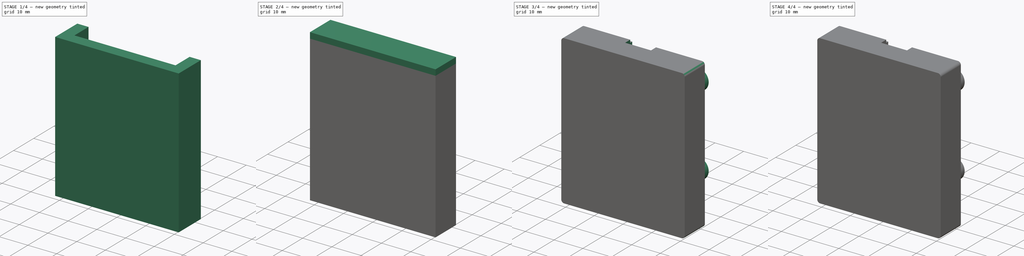
[diagram: build sequence overview — one tinted view per stage of 4, left to right]
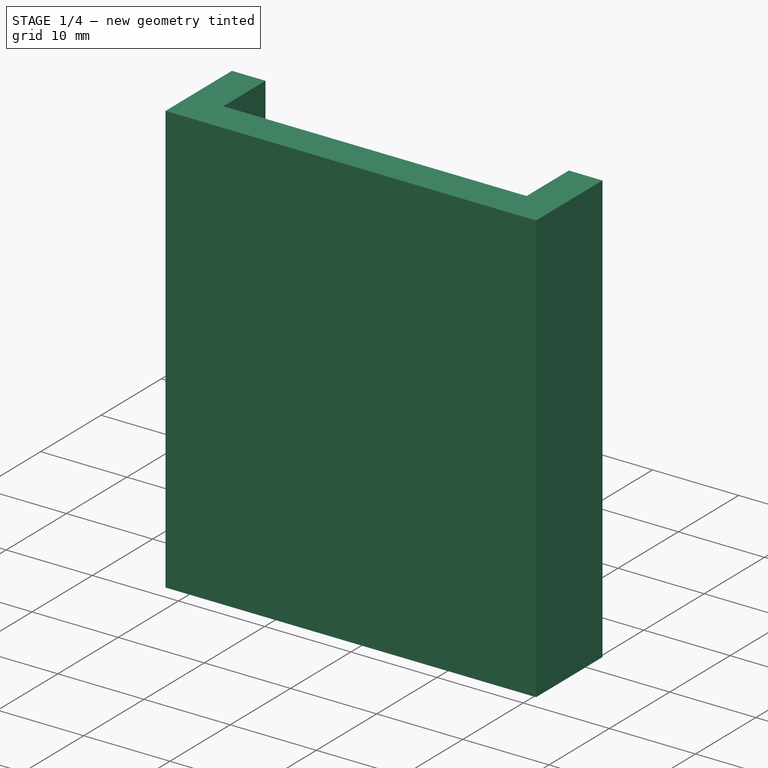
[diagram: stage 1 of 4 — iso view after this stage's code; geometry added in this stage tinted green]
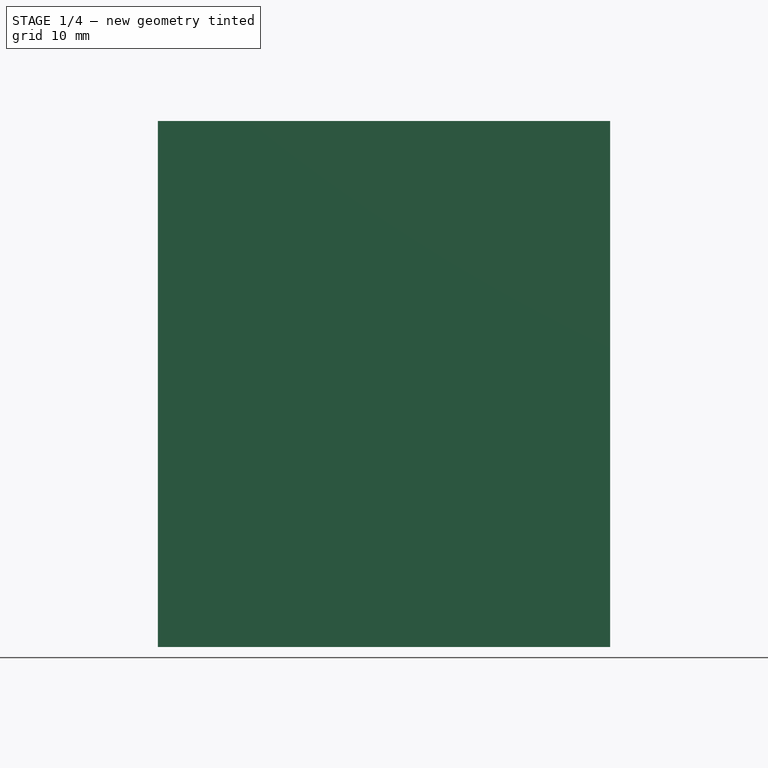
[diagram: stage 1 of 4 — front view after this stage's code; geometry added in this stage tinted green]
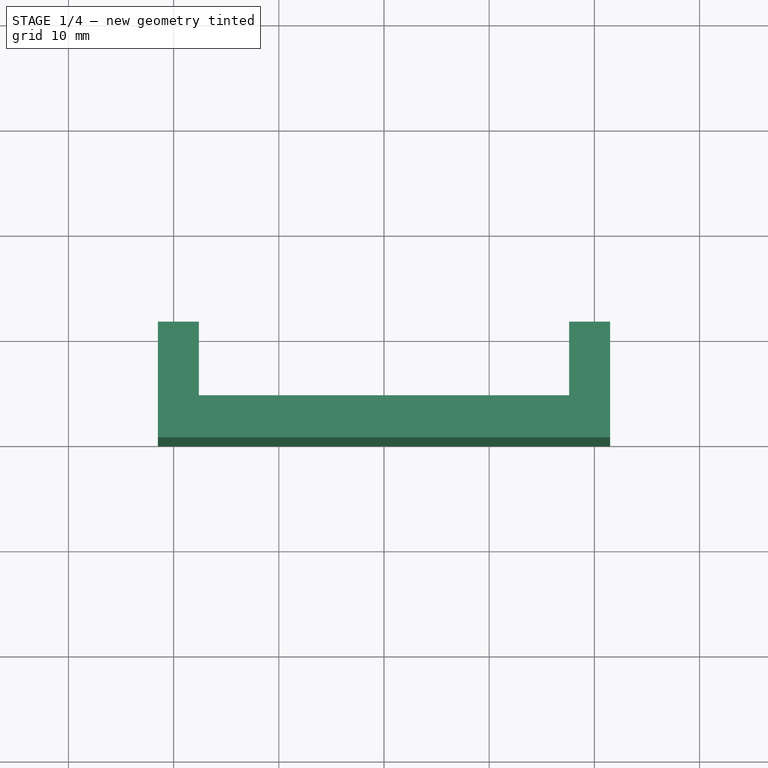
[diagram: stage 1 of 4 — top view after this stage's code; geometry added in this stage tinted green]
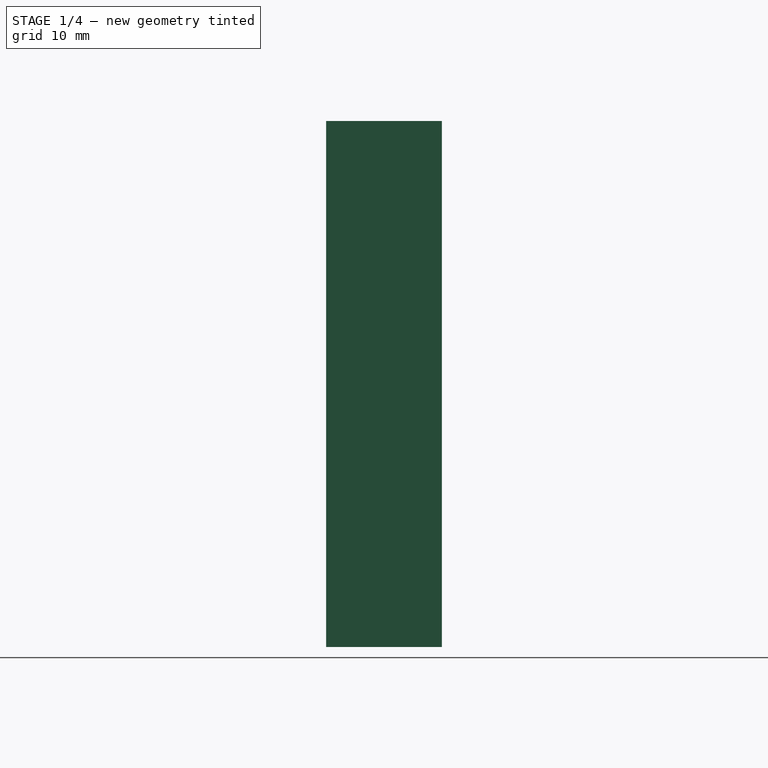
[diagram: stage 1 of 4 — right view after this stage's code; geometry added in this stage tinted green]
FCSTD DOCUMENT  (FreeCAD 0.20R29410 (Git))
Label: kutija1
License: All rights reserved
LicenseURL: http://en.wikipedia.org/wiki/All_rights_reserved
objects: Sketcher::SketchObject×8, PartDesign::Pad×4, PartDesign::Pocket×4, PartDesign::Fillet×1, PartDesign::Body×1
note: 27 computed .brp shape members not serialized (recipe doc carries the construction recipe); baked Part::Feature solids carry a one-line shape summary decoded from their .brp

FEATURE [Sketcher::SketchObject] Sketch
  FullyConstrained = true
  MapMode = 5
  Support = -> [XY_Plane]
  sketch-geometry (8):
    g0: LineSegment StartX=-21.5 StartY=11 StartZ=0 EndX=-21.5 EndY=0 EndZ=0
    g1: LineSegment StartX=-21.5 StartY=0 StartZ=0 EndX=21.5 EndY=0 EndZ=0
    g2: LineSegment StartX=21.5 StartY=0 StartZ=0 EndX=21.5 EndY=11 EndZ=0
    g3: LineSegment StartX=21.5 StartY=11 StartZ=0 EndX=17.6 EndY=11 EndZ=0
    g4: LineSegment StartX=17.6 StartY=11 StartZ=0 EndX=17.6 EndY=4 EndZ=0
    g5: LineSegment StartX=17.6 StartY=4 StartZ=0 EndX=-17.6 EndY=4 EndZ=0
    g6: LineSegment StartX=-17.6 StartY=4 StartZ=0 EndX=-17.6 EndY=11 EndZ=0
    g7: LineSegment StartX=-17.6 StartY=11 StartZ=0 EndX=-21.5 EndY=11 EndZ=0
  constraints (22):
    c: Vertical(g4)
    c: DistanceX(g1,g1) = 43
    c: DistanceX(g5,g5) = 35.2
    c: Equal(g0,g2)
    c: Vertical(g6)
    c: Symmetric(g0,g1,g-2)
    c: Coincident(g5,g6)
    c: Coincident(g4,g5)
    c: Horizontal(g7)
    c: Coincident(g0,g7)
    c: Vertical(g0)
    c: Coincident(g3,g2)
    c: Vertical(g2)
    c: Coincident(g0,g1)
    c: Coincident(g1,g2)
    c: PointOnObject(g-1,g1)
    c: Coincident(g6,g7)
    c: Coincident(g3,g4)
    c: Horizontal(g3)
    c: Symmetric(g5,g4,g-2)
    c: DistanceY(g0,g5) = 4
    c: DistanceY(g6,g6) = 7
FEATURE [PartDesign::Pad] Pad
  Direction = (0,0,1)
  Length = 50
  Length2 = 10
  Profile = -> Sketch
  ReferenceAxis = -> Sketch [N_Axis]
  Type = 0
FEATURE [Sketcher::SketchObject] Sketch001
  FullyConstrained = true
  MapMode = 5
  Placement = pos=(0,11,0) rot=(0,0.707107,0.707107;3.14159rad)
  Support = -> [Pad]
  sketch-geometry (4):
    g0: LineSegment StartX=-19.65 StartY=6.4 StartZ=0 EndX=19.65 EndY=6.4 EndZ=0
    g1: LineSegment StartX=19.65 StartY=6.4 StartZ=0 EndX=19.65 EndY=3 EndZ=0
    g2: LineSegment StartX=19.65 StartY=3 StartZ=0 EndX=-19.65 EndY=3 EndZ=0
    g3: LineSegment StartX=-19.65 StartY=3 StartZ=0 EndX=-19.65 EndY=6.4 EndZ=0
  constraints (11):
    c: Coincident(g0,g1)
    c: Coincident(g1,g2)
    c: Coincident(g2,g3)
    c: Coincident(g3,g0)
    c: Horizontal(g0)
    c: Vertical(g1)
    c: Vertical(g3)
    c: DistanceY(g1,g1) = 3.4
    c: Symmetric(g2,g1,g-2)
    c: DistanceX(g2,g2) = 39.3
    c: DistanceY(g-1,g1) = 3
FEATURE [PartDesign::Pocket] Pocket
  BaseFeature = -> Pad
  Direction = (0,-1,2e-16)
  Length = 9.4
  Length2 = 5
  Profile = -> Sketch001
  ReferenceAxis = -> Sketch001 [N_Axis]
  Type = 0
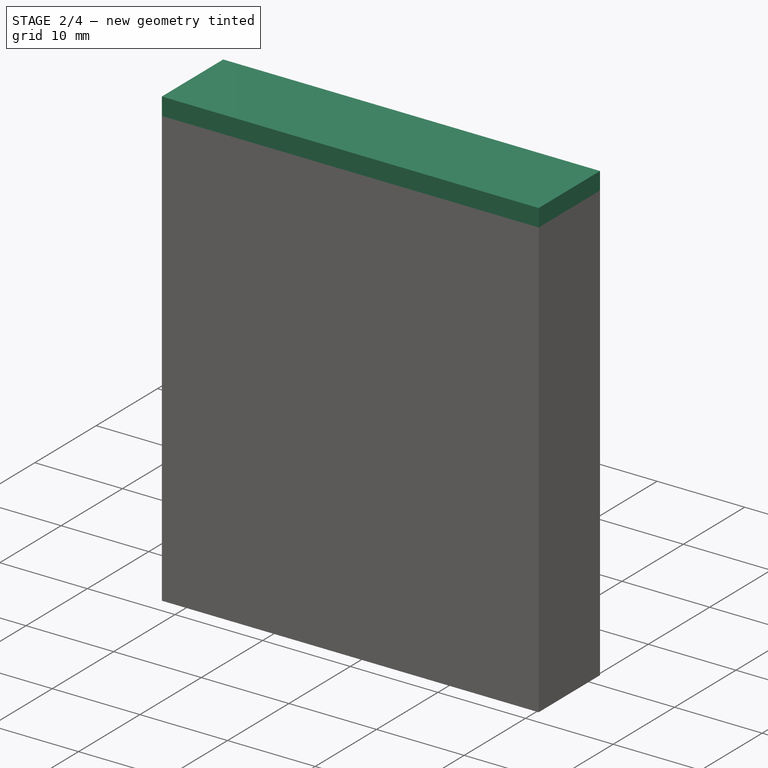
[diagram: stage 2 of 4 — iso view after this stage's code; geometry added in this stage tinted green]
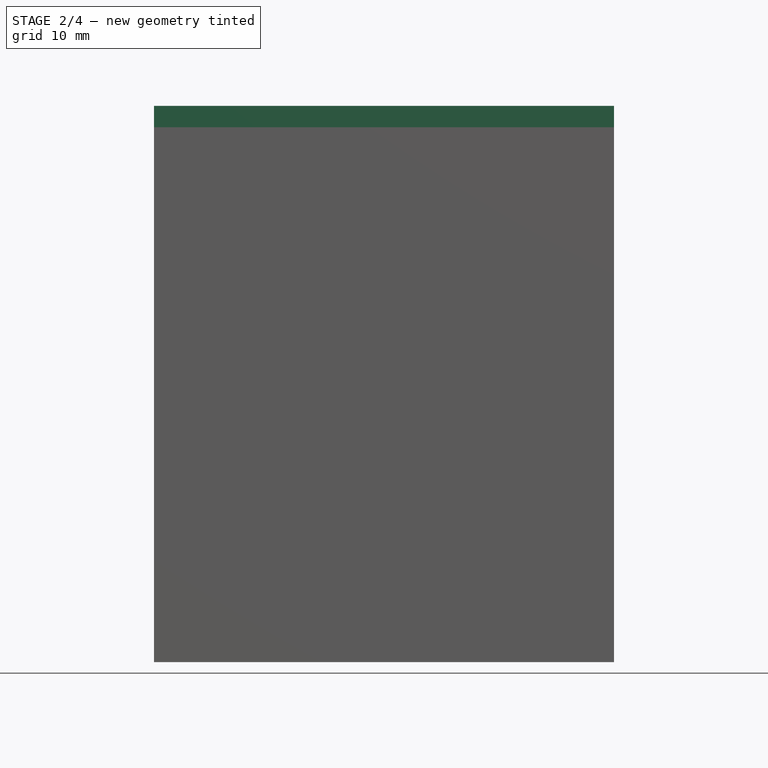
[diagram: stage 2 of 4 — front view after this stage's code; geometry added in this stage tinted green]
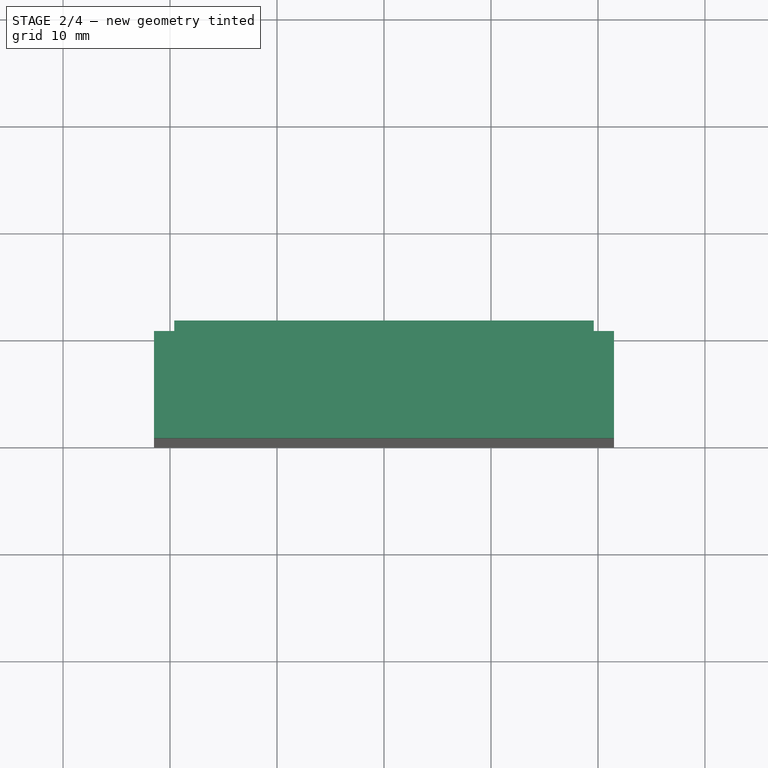
[diagram: stage 2 of 4 — top view after this stage's code; geometry added in this stage tinted green]
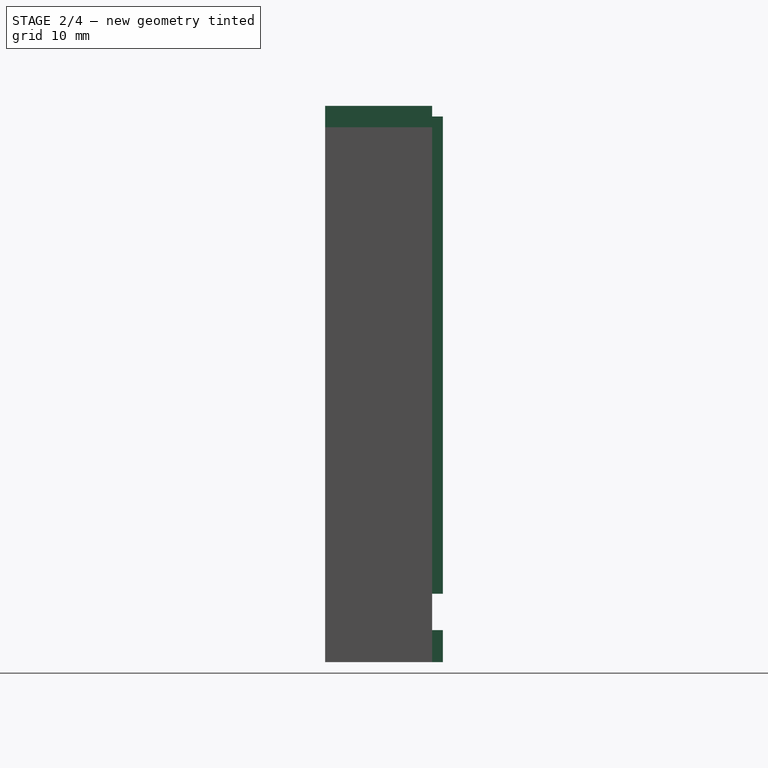
[diagram: stage 2 of 4 — right view after this stage's code; geometry added in this stage tinted green]
FEATURE [Sketcher::SketchObject] Sketch002
  FullyConstrained = true
  MapMode = 5
  Placement = pos=(0,0,50) rot=(0,0,1;0rad)
  Support = -> [Pocket]
  sketch-geometry (4):
    g0: LineSegment StartX=-21.5 StartY=11 StartZ=0 EndX=21.5 EndY=11 EndZ=0
    g1: LineSegment StartX=21.5 StartY=11 StartZ=0 EndX=21.5 EndY=0 EndZ=0
    g2: LineSegment StartX=21.5 StartY=0 StartZ=0 EndX=-21.5 EndY=0 EndZ=0
    g3: LineSegment StartX=-21.5 StartY=0 StartZ=0 EndX=-21.5 EndY=11 EndZ=0
  constraints (11):
    c: Coincident(g0,g1)
    c: Coincident(g1,g2)
    c: Coincident(g2,g3)
    c: Coincident(g3,g0)
    c: Horizontal(g0)
    c: Vertical(g1)
    c: Vertical(g3)
    c: Symmetric(g2,g1,g-2)
    c: PointOnObject(g-1,g2)
    c: DistanceY(g1,g1) = 11
    c: DistanceX(g2,g2) = 43
FEATURE [PartDesign::Pad] Pad001
  BaseFeature = -> Pocket
  Direction = (0,0,1)
  Length = 2
  Length2 = 10
  Profile = -> Sketch002
  ReferenceAxis = -> Sketch002 [N_Axis]
  Type = 0
FEATURE [Sketcher::SketchObject] Sketch003
  FullyConstrained = false
  MapMode = 5
  Placement = pos=(0,11,0) rot=(0,0.707107,0.707107;3.14159rad)
  Support = -> [Pad001]
  sketch-geometry (8):
    g0: LineSegment StartX=-19.6 StartY=-6.10311 StartZ=0 EndX=-19.6 EndY=51 EndZ=0
    g1: LineSegment StartX=-19.6 StartY=51 StartZ=0 EndX=19.6 EndY=51 EndZ=0
    g2: LineSegment StartX=19.6 StartY=51 StartZ=0 EndX=19.6 EndY=-6.10311 EndZ=0
    g3: LineSegment StartX=19.6 StartY=-6.10311 StartZ=0 EndX=31.5228 EndY=-6.10311 EndZ=0
    g4: LineSegment StartX=31.5228 StartY=-6.10311 StartZ=0 EndX=31.5228 EndY=63.6065 EndZ=0
    g5: LineSegment StartX=31.5228 StartY=63.6065 StartZ=0 EndX=-31.5228 EndY=63.6065 EndZ=0
    g6: LineSegment StartX=-31.5228 StartY=63.6065 StartZ=0 EndX=-31.5228 EndY=-6.10311 EndZ=0
    g7: LineSegment StartX=-31.5228 StartY=-6.10311 StartZ=0 EndX=-19.6 EndY=-6.10311 EndZ=0
  constraints (20):
    c: Vertical(g0)
    c: Coincident(g0,g1)
    c: Coincident(g1,g2)
    c: Vertical(g2)
    c: Coincident(g2,g3)
    c: Horizontal(g3)
    c: Coincident(g3,g4)
    c: Vertical(g4)
    c: Coincident(g4,g5)
    c: Horizontal(g5)
    c: Coincident(g5,g6)
    c: Vertical(g6)
    c: Coincident(g6,g7)
    c: Coincident(g7,g0)
    c: Horizontal(g7)
    c: Equal(g7,g3)
    c: Equal(g0,g2)
    c: DistanceY(g-1,g0) = 51
    c: DistanceX(g0,g-1) = 19.6
    c: Symmetric(g0,g1,g-2)
FEATURE [PartDesign::Pocket] Pocket001
  BaseFeature = -> Pad001
  Direction = (0,-1,2e-16)
  Length = 1
  Length2 = 5
  Profile = -> Sketch003
  ReferenceAxis = -> Sketch003 [N_Axis]
  Type = 0
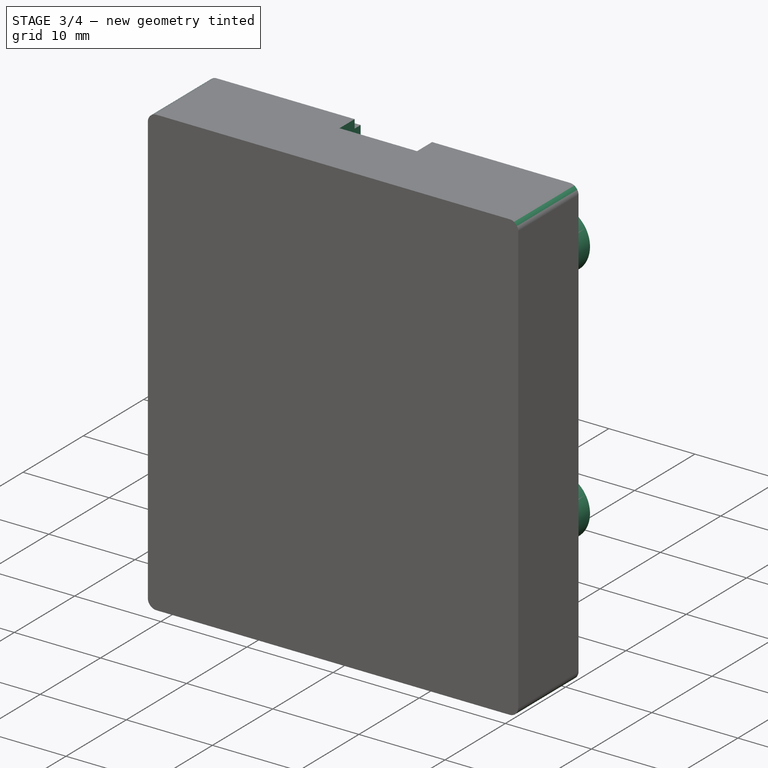
[diagram: stage 3 of 4 — iso view after this stage's code; geometry added in this stage tinted green]
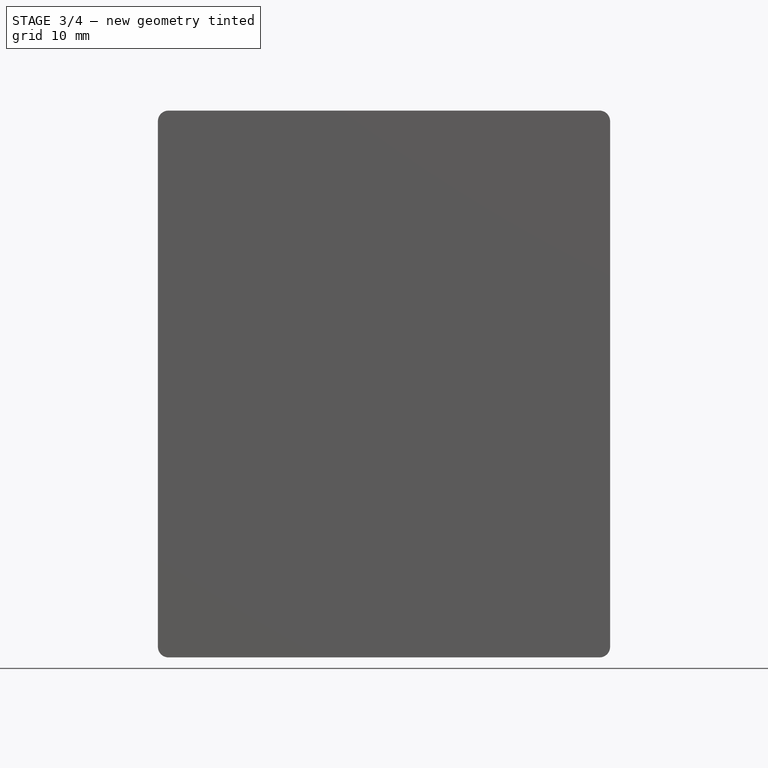
[diagram: stage 3 of 4 — front view after this stage's code; geometry added in this stage tinted green]
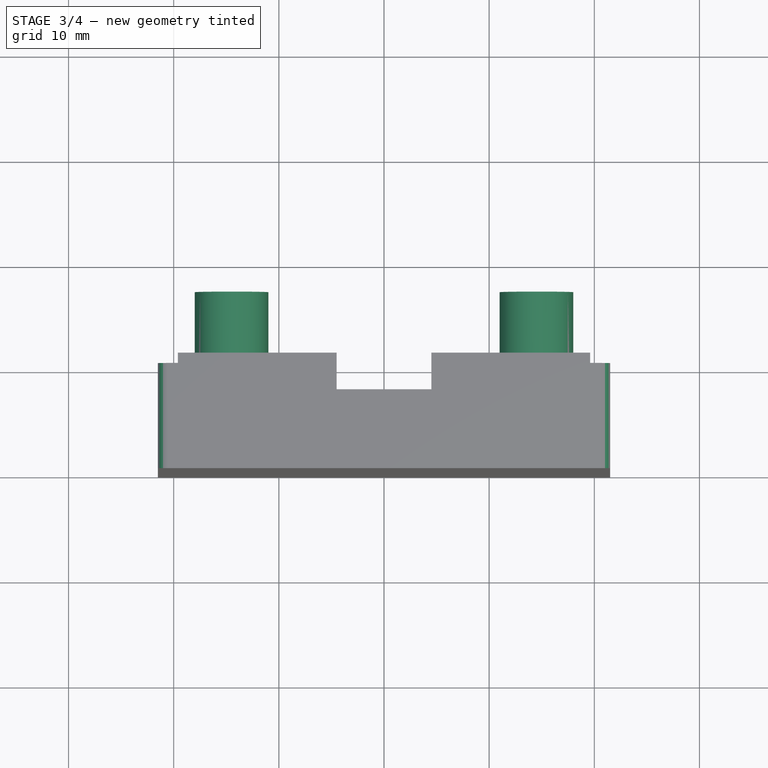
[diagram: stage 3 of 4 — top view after this stage's code; geometry added in this stage tinted green]
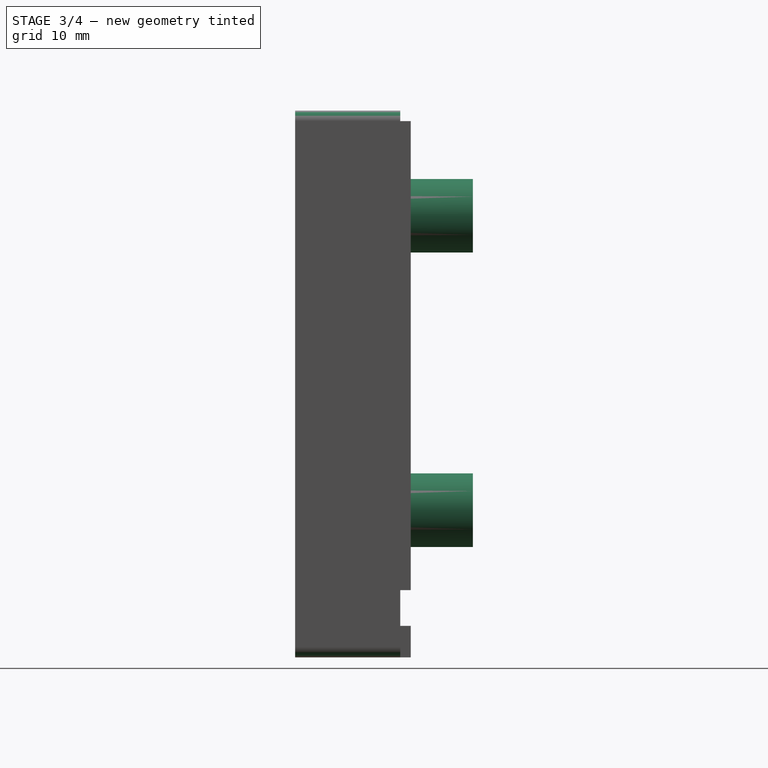
[diagram: stage 3 of 4 — right view after this stage's code; geometry added in this stage tinted green]
FEATURE [Sketcher::SketchObject] Sketch004
  FullyConstrained = false
  MapMode = 5
  Placement = pos=(0,0,52) rot=(0,0,1;0rad)
  Support = -> [Pocket001]
  sketch-geometry (4):
    g0: LineSegment StartX=-4.5 StartY=14.6359 StartZ=0 EndX=4.5 EndY=14.6359 EndZ=0
    g1: LineSegment StartX=4.5 StartY=14.6359 StartZ=0 EndX=4.5 EndY=7.5 EndZ=0
    g2: LineSegment StartX=4.5 StartY=7.5 StartZ=0 EndX=-4.5 EndY=7.5 EndZ=0
    g3: LineSegment StartX=-4.5 StartY=7.5 StartZ=0 EndX=-4.5 EndY=14.6359 EndZ=0
  constraints (10):
    c: Coincident(g0,g1)
    c: Coincident(g1,g2)
    c: Coincident(g2,g3)
    c: Coincident(g3,g0)
    c: Horizontal(g0)
    c: Vertical(g1)
    c: Vertical(g3)
    c: Symmetric(g2,g1,g-2)
    c: DistanceX(g2,g2) = 9
    c: DistanceY(g-1,g2) = 7.5
FEATURE [PartDesign::Pocket] Pocket002
  BaseFeature = -> Pocket001
  Direction = (0,0,-1)
  Length = 5
  Length2 = 5
  Profile = -> Sketch004
  ReferenceAxis = -> Sketch004 [N_Axis]
  Type = 0
FEATURE [PartDesign::Fillet] Fillet
  Base = -> Pocket002 [Edge1,Edge19,Edge55,Edge14]
  BaseFeature = -> Pocket002
  Radius = 1
  SupportTransform = false
  UseAllEdges = false
FEATURE [Sketcher::SketchObject] Sketch005
  FullyConstrained = true
  MapMode = 5
  Placement = pos=(0,4,0) rot=(0,0.707107,0.707107;3.14159rad)
  Support = -> [Fillet]
  sketch-geometry (12):
    g0: Circle CenterX=-14.5 CenterY=14 CenterZ=0 NormalX=0 NormalY=0 NormalZ=1 AngleXU=0 Radius=3.5
    g1: Circle CenterX=14.5 CenterY=14 CenterZ=0 NormalX=0 NormalY=0 NormalZ=1 AngleXU=0 Radius=3.5
    g2: Circle CenterX=14.5 CenterY=42 CenterZ=0 NormalX=0 NormalY=0 NormalZ=1 AngleXU=0 Radius=3.5
    g3: Circle CenterX=-14.5 CenterY=42 CenterZ=0 NormalX=0 NormalY=0 NormalZ=1 AngleXU=0 Radius=3.5
    g4: LineSegment StartX=-14.5 StartY=14 StartZ=0 EndX=14.5 EndY=14 EndZ=0
    g5: LineSegment StartX=14.5 StartY=14 StartZ=0 EndX=14.5 EndY=42 EndZ=0
    g6: LineSegment StartX=14.5 StartY=42 StartZ=0 EndX=-14.5 EndY=42 EndZ=0
    g7: LineSegment StartX=-14.5 StartY=42 StartZ=0 EndX=-14.5 EndY=14 EndZ=0
    g8: Circle CenterX=-14.5 CenterY=14 CenterZ=0 NormalX=0 NormalY=0 NormalZ=1 AngleXU=0 Radius=1
    g9: Circle CenterX=14.5 CenterY=14 CenterZ=0 NormalX=0 NormalY=0 NormalZ=1 AngleXU=0 Radius=1
    g10: Circle CenterX=-14.5 CenterY=42 CenterZ=0 NormalX=0 NormalY=0 NormalZ=1 AngleXU=0 Radius=1
    g11: Circle CenterX=14.5 CenterY=42 CenterZ=0 NormalX=0 NormalY=0 NormalZ=1 AngleXU=0 Radius=1
  constraints (27):
    c: Equal(g3,g2)
    c: Equal(g2,g1)
    c: Equal(g1,g0)
    c: Diameter(g3) = 7
    c: Coincident(g4,g0)
    c: Coincident(g4,g1)
    c: Coincident(g5,g1)
    c: Coincident(g5,g2)
    c: Coincident(g6,g2)
    c: Coincident(g6,g3)
    c: Coincident(g7,g3)
    c: Coincident(g7,g0)
    c: Vertical(g7)
    c: Vertical(g5)
    c: Horizontal(g6)
    c: DistanceY(g5,g5) = 28
    c: DistanceX(g4,g4) = 29
    c: Coincident(g8,g0)
    c: Coincident(g9,g1)
    c: Coincident(g10,g3)
    c: Coincident(g11,g2)
    c: Equal(g10,g8)
    c: Equal(g8,g9)
    c: Equal(g9,g11)
    c: Diameter(g10) = 2
    c: Symmetric(g0,g1,g-2)
    c: DistanceY(g-1,g0) = 14
FEATURE [PartDesign::Pad] Pad002
  BaseFeature = -> Fillet
  Direction = (0,1,-2e-16)
  Length = 12.9
  Length2 = 10
  Profile = -> Sketch005
  ReferenceAxis = -> Sketch005 [N_Axis]
  Type = 0
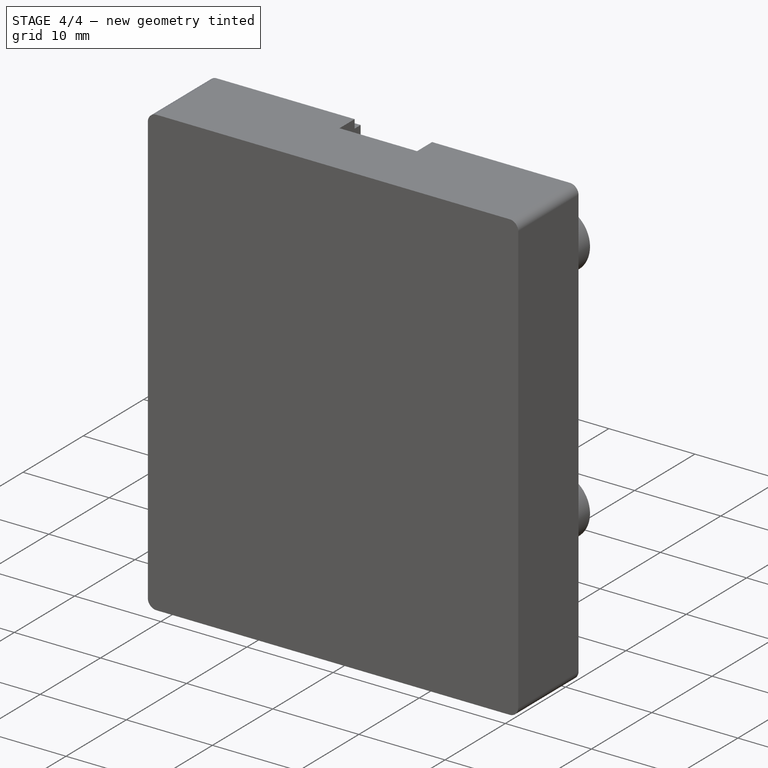
[diagram: stage 4 of 4 — iso view after this stage's code; geometry added in this stage tinted green]
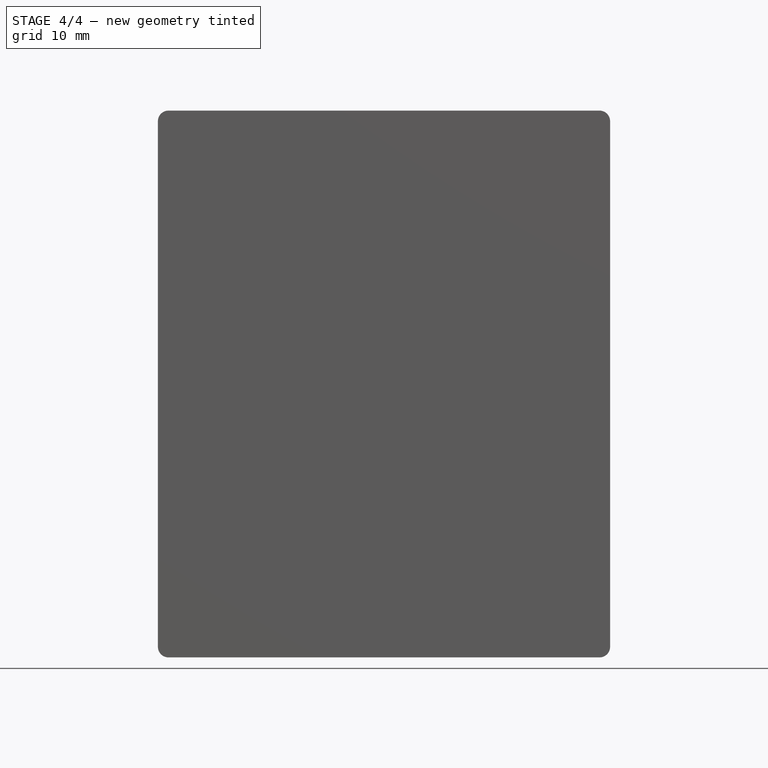
[diagram: stage 4 of 4 — front view after this stage's code; geometry added in this stage tinted green]
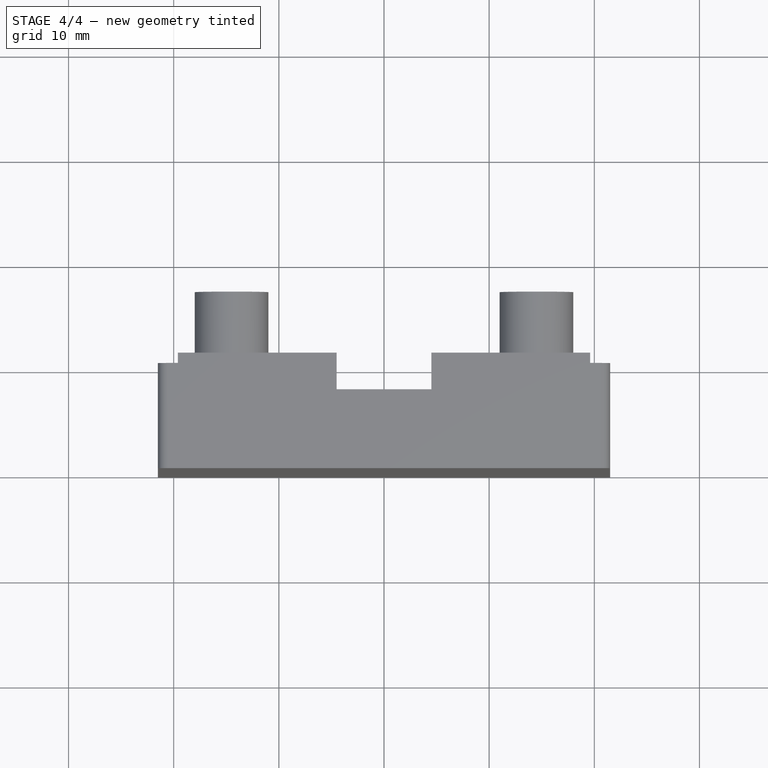
[diagram: stage 4 of 4 — top view after this stage's code; geometry added in this stage tinted green]
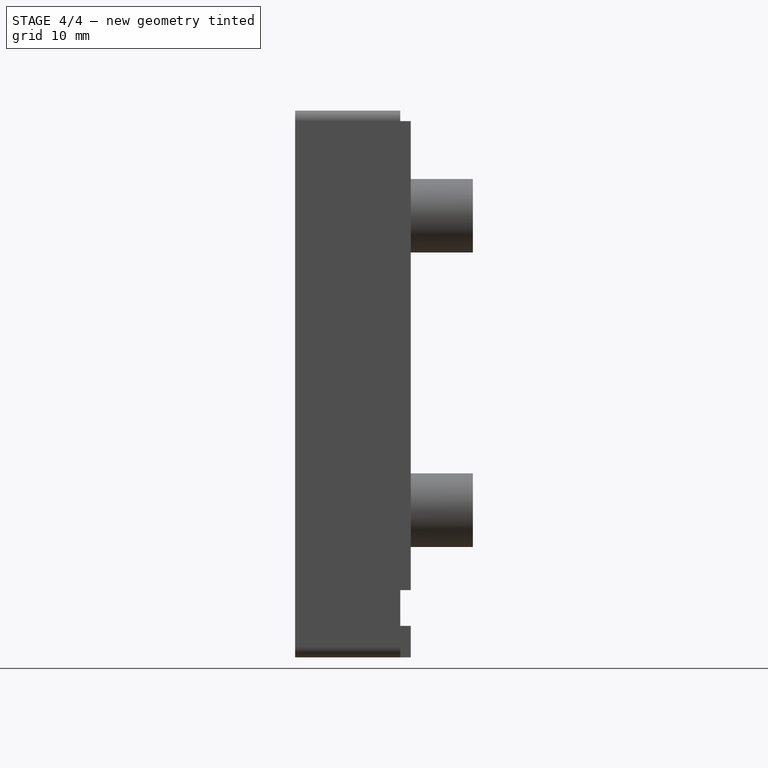
[diagram: stage 4 of 4 — right view after this stage's code; geometry added in this stage tinted green]
FEATURE [Sketcher::SketchObject] Sketch006
  FullyConstrained = true
  MapMode = 5
  Placement = pos=(0,4,0) rot=(0,0.707107,0.707107;3.14159rad)
  Support = -> [Pad002]
  sketch-geometry (7):
    g0: LineSegment StartX=-10 StartY=42 StartZ=0 EndX=10 EndY=42 EndZ=0
    g1: LineSegment StartX=10 StartY=42 StartZ=0 EndX=10 EndY=32 EndZ=0
    g2: LineSegment StartX=10 StartY=32 StartZ=0 EndX=-10 EndY=32 EndZ=0
    g3: LineSegment StartX=-10 StartY=32 StartZ=0 EndX=-10 EndY=42 EndZ=0
    g4: Circle CenterX=-7 CenterY=37 CenterZ=0 NormalX=0 NormalY=0 NormalZ=1 AngleXU=0 Radius=1
    g5: Circle CenterX=7 CenterY=37 CenterZ=0 NormalX=0 NormalY=0 NormalZ=1 AngleXU=0 Radius=1
    g6: LineSegment StartX=-7 StartY=37 StartZ=0 EndX=7 EndY=37 EndZ=0
  constraints (18):
    c: Coincident(g0,g1)
    c: Coincident(g1,g2)
    c: Coincident(g2,g3)
    c: Coincident(g3,g0)
    c: Horizontal(g0)
    c: Vertical(g1)
    c: Vertical(g3)
    c: Symmetric(g2,g1,g-2)
    c: DistanceX(g2,g2) = 20
    c: DistanceY(g1,g1) = 10
    c: Coincident(g6,g4)
    c: Coincident(g6,g5)
    c: Symmetric(g4,g5,g-2)
    c: Equal(g5,g4)
    c: Diameter(g5) = 2
    c: DistanceX(g6,g6) = 14
    c: DistanceY(g2,g4) = 5
    c: DistanceY(g-1,g2) = 32
FEATURE [PartDesign::Pad] Pad003
  BaseFeature = -> Pad002
  Direction = (0,1,-2e-16)
  Length = 4
  Length2 = 10
  Profile = -> Sketch006
  ReferenceAxis = -> Sketch006 [N_Axis]
  Type = 0
FEATURE [Sketcher::SketchObject] Sketch007
  FullyConstrained = false
  MapMode = 5
  Placement = pos=(0,8,-1.4e-15) rot=(0,0.707107,0.707107;3.14159rad)
  Support = -> [Pad003]
  sketch-geometry (4):
    g0: LineSegment StartX=-4.5 StartY=44.0723 StartZ=0 EndX=4.5 EndY=44.0723 EndZ=0
    g1: LineSegment StartX=4.5 StartY=44.0723 StartZ=0 EndX=4.5 EndY=29.8458 EndZ=0
    g2: LineSegment StartX=4.5 StartY=29.8458 StartZ=0 EndX=-4.5 EndY=29.8458 EndZ=0
    g3: LineSegment StartX=-4.5 StartY=29.8458 StartZ=0 EndX=-4.5 EndY=44.0723 EndZ=0
  constraints (9):
    c: Coincident(g0,g1)
    c: Coincident(g1,g2)
    c: Coincident(g2,g3)
    c: Coincident(g3,g0)
    c: Horizontal(g0)
    c: Vertical(g1)
    c: Vertical(g3)
    c: Symmetric(g2,g1,g-2)
    c: DistanceX(g2,g2) = 9
FEATURE [PartDesign::Pocket] Pocket003
  BaseFeature = -> Pad003
  Direction = (0,-1,2e-16)
  Length = 1
  Length2 = 5
  Profile = -> Sketch007
  ReferenceAxis = -> Sketch007 [N_Axis]
  Type = 0
FEATURE [PartDesign::Body] Body
  Group = -> [Sketch,Pad,Sketch001,Pocket,Sketch002,Pad001,Sketch003,Pocket001,Sketch004,Pocket002,Fillet,Sketch005,Pad002,Sketch006,Pad003,Sketch007,Pocket003]
  Origin = -> Origin
  Tip = -> Pocket003
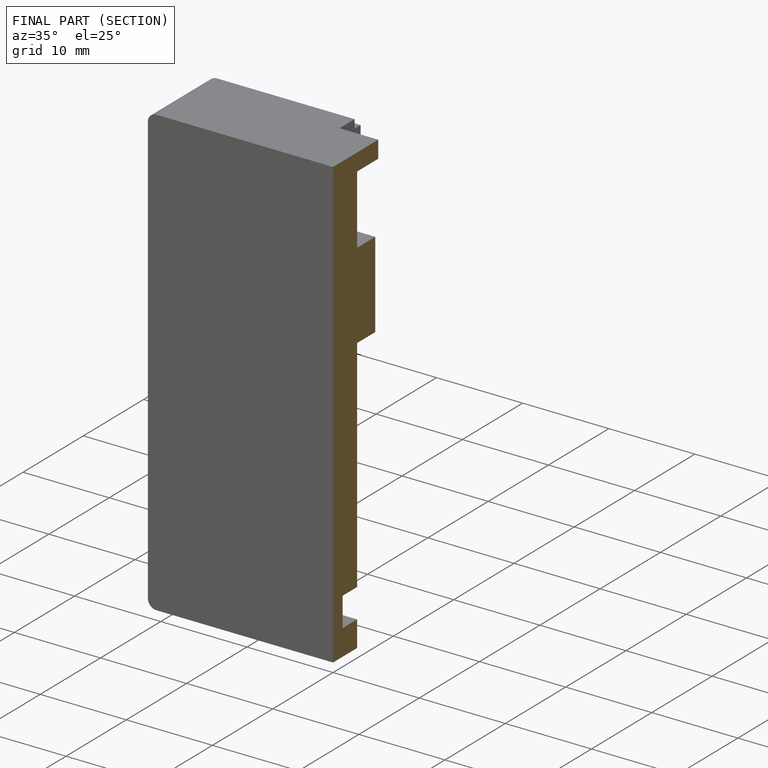
[diagram: finished part — half-section view (interior)]
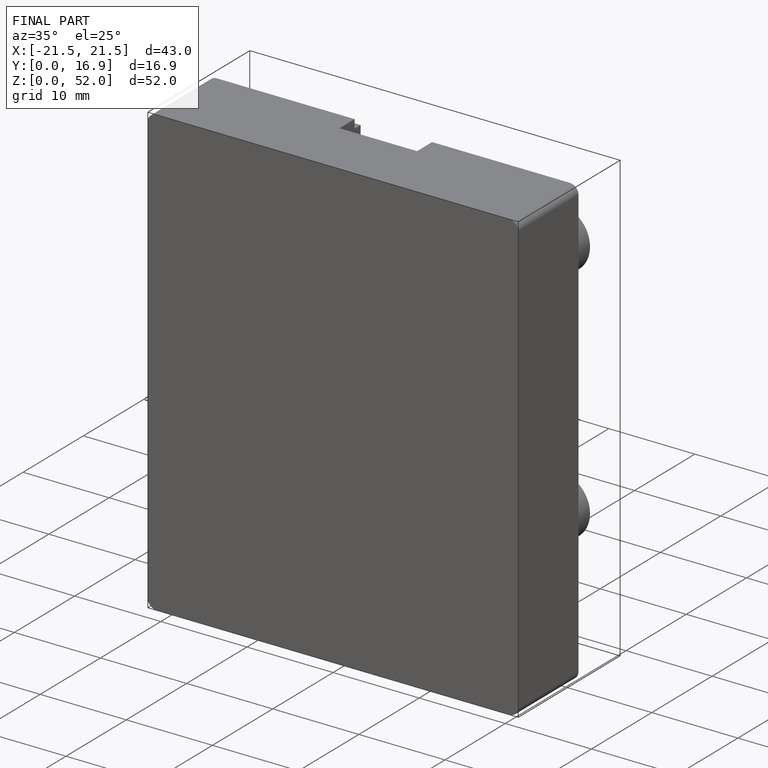
[diagram: finished part — iso view with bounding-box wireframe]
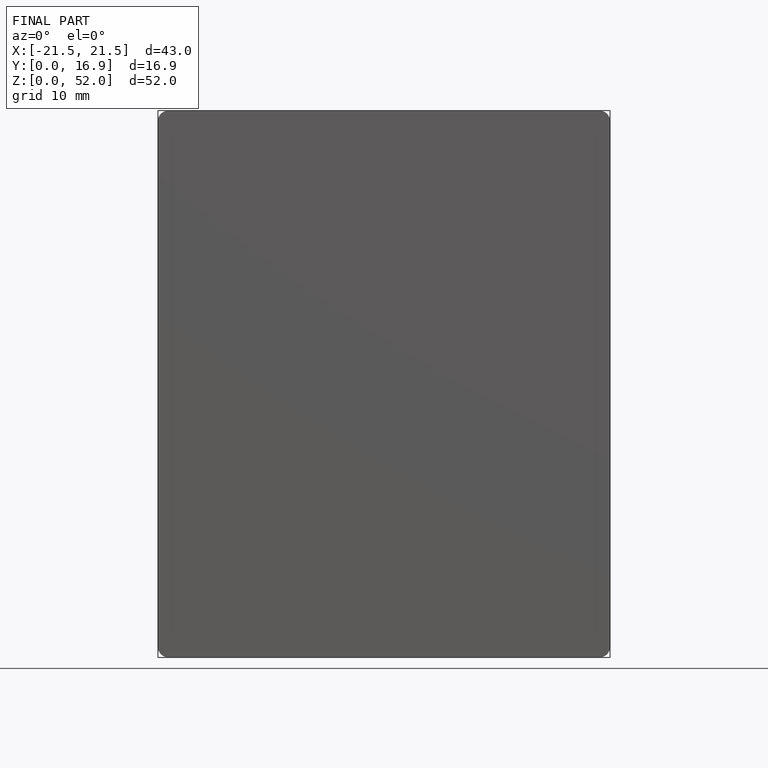
[diagram: finished part — front view with bounding-box wireframe]
